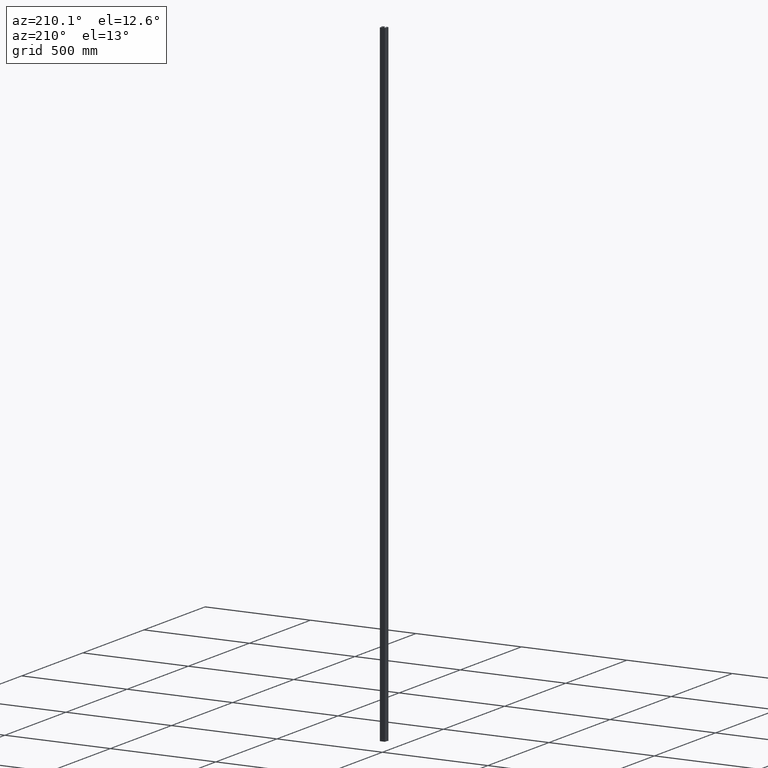
[diagram: clean part render]
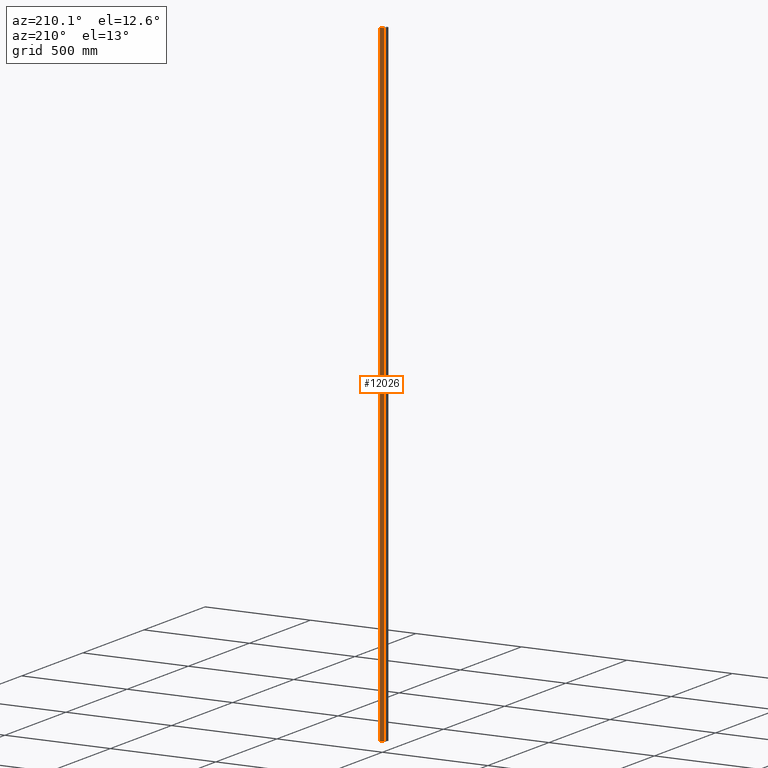
[diagram: same view with one face highlighted and labeled with its STEP entity id]
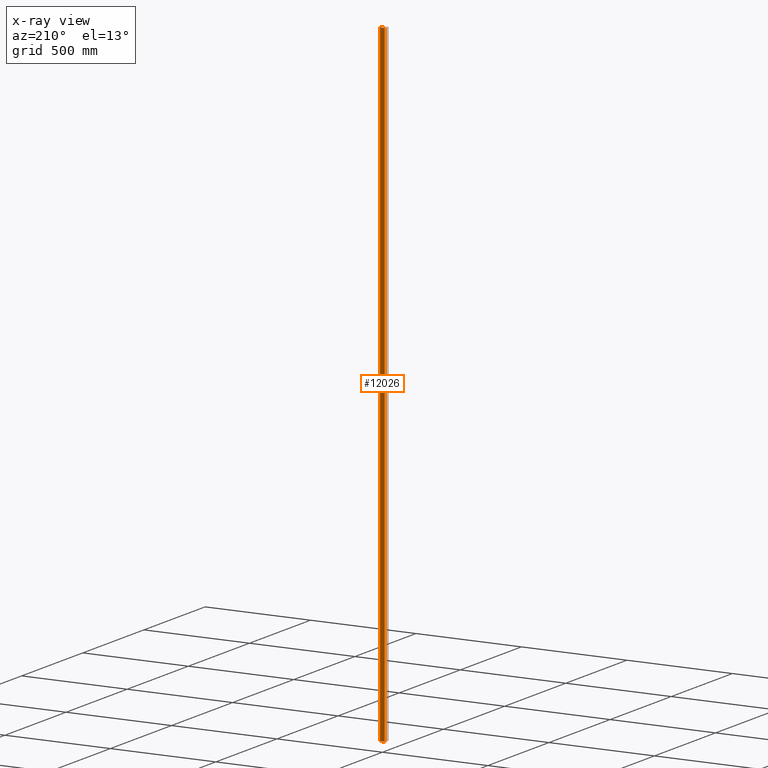
[diagram: x-ray of the same camera — body ghosted, the highlighted face saturated]
A machine part, auxiliary view. The second image highlights one B-rep face of the part: STEP entity #12026.
The next image is the same camera in x-ray: the body ghosted, the highlighted face saturated — about 0% of this face is hidden behind the body in this view.
In plain terms, the highlighted planar face has unit normal (0, -1, 0).
Its self-contained STEP definition (entity closure, byte-faithful):
#603 = CARTESIAN_POINT ( 'NONE',  ( 0.000000000000000000, 0.000000000000000000, 1500.000000000000000 ) ) ;
#1705 = VECTOR ( 'NONE', #2866, 1000.000000000000000 ) ;
#2775 = CARTESIAN_POINT ( 'NONE',  ( -11.20174050257728915, -2.602085213965210642E-15, -1500.000000000000000 ) ) ;
#2866 = DIRECTION ( 'NONE',  ( 0.000000000000000000, 0.000000000000000000, -1.000000000000000000 ) ) ;
#3729 = ORIENTED_EDGE ( 'NONE', *, *, #16365, .T. ) ;
#4280 = FACE_OUTER_BOUND ( 'NONE', #14743, .T. ) ;
#5268 = ORIENTED_EDGE ( 'NONE', *, *, #20875, .F. ) ;
#5626 = CARTESIAN_POINT ( 'NONE',  ( 0.000000000000000000, 0.000000000000000000, 1500.000000000000000 ) ) ;
#5813 = CARTESIAN_POINT ( 'NONE',  ( -11.20174050257728915, -2.602085213965210642E-15, 1500.000000000000000 ) ) ;
#6654 = LINE ( 'NONE', #5813, #10494 ) ;
#6840 = VERTEX_POINT ( 'NONE', #19142 ) ;
#7211 = LINE ( 'NONE', #17948, #8468 ) ;
#7228 = DIRECTION ( 'NONE',  ( -0.000000000000000000, -0.000000000000000000, -1.000000000000000000 ) ) ;
#7249 = DIRECTION ( 'NONE',  ( 1.000000000000000000, 1.161464690851624885E-16, 0.000000000000000000 ) ) ;
#7362 = VERTEX_POINT ( 'NONE', #2775 ) ;
#7391 = VECTOR ( 'NONE', #16836, 1000.000000000000000 ) ;
#8468 = VECTOR ( 'NONE', #19337, 1000.000000000000000 ) ;
#10494 = VECTOR ( 'NONE', #7228, 1000.000000000000000 ) ;
#10800 = CARTESIAN_POINT ( 'NONE',  ( 11.20174050257728915, 2.317367766878603352E-16, -1500.000000000000000 ) ) ;
#11220 = ORIENTED_EDGE ( 'NONE', *, *, #17971, .F. ) ;
#11955 = VERTEX_POINT ( 'NONE', #14996 ) ;
#12026 = ADVANCED_FACE ( 'NONE', ( #4280 ), #15363, .F. ) ;
#12545 = EDGE_CURVE ( 'NONE', #11955, #17270, #15471, .T. ) ;
#12631 = CARTESIAN_POINT ( 'NONE',  ( 11.20174050257728915, 2.317367766878603352E-16, 1500.000000000000000 ) ) ;
#14743 = EDGE_LOOP ( 'NONE', ( #3729, #11220, #5268, #16742 ) ) ;
#14996 = CARTESIAN_POINT ( 'NONE',  ( 11.20174050257728915, 2.317367766878603352E-16, 1500.000000000000000 ) ) ;
#15363 = PLANE ( 'NONE',  #18367 ) ;
#15471 = LINE ( 'NONE', #12631, #1705 ) ;
#16365 = EDGE_CURVE ( 'NONE', #17270, #7362, #7211, .T. ) ;
#16742 = ORIENTED_EDGE ( 'NONE', *, *, #12545, .T. ) ;
#16836 = DIRECTION ( 'NONE',  ( -1.000000000000000000, -1.161464690851624885E-16, 0.000000000000000000 ) ) ;
#17024 = DIRECTION ( 'NONE',  ( 1.161464690851624885E-16, -1.000000000000000000, 0.000000000000000000 ) ) ;
#17270 = VERTEX_POINT ( 'NONE', #10800 ) ;
#17948 = CARTESIAN_POINT ( 'NONE',  ( 0.000000000000000000, 0.000000000000000000, -1500.000000000000000 ) ) ;
#17971 = EDGE_CURVE ( 'NONE', #6840, #7362, #6654, .T. ) ;
#18367 = AXIS2_PLACEMENT_3D ( 'NONE', #5626, #17024, #7249 ) ;
#19142 = CARTESIAN_POINT ( 'NONE',  ( -11.20174050257728915, -2.602085213965210642E-15, 1500.000000000000000 ) ) ;
#19337 = DIRECTION ( 'NONE',  ( -1.000000000000000000, -1.161464690851624885E-16, 0.000000000000000000 ) ) ;
#20441 = LINE ( 'NONE', #603, #7391 ) ;
#20875 = EDGE_CURVE ( 'NONE', #11955, #6840, #20441, .T. ) ;